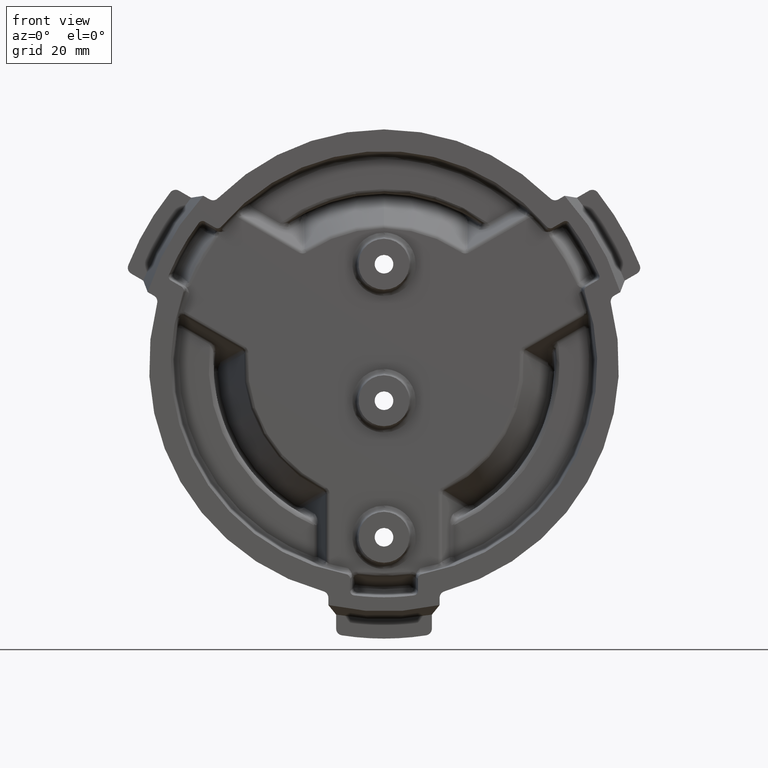
[diagram: clean part render]
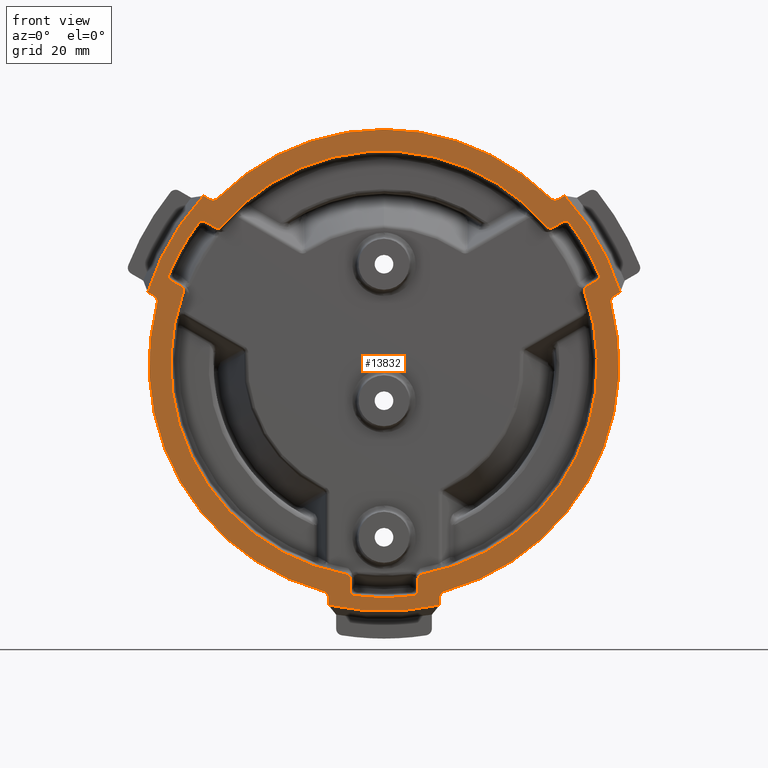
[diagram: same view with one face highlighted and labeled with its STEP entity id]
A machine part, front view. The second image highlights one B-rep face of the part: STEP entity #13832.
In plain terms, the highlighted planar face has unit normal (0, 1, 0).
Its self-contained STEP definition (entity closure, byte-faithful):
#163 = FACE_BOUND ( 'NONE', #37747, .T. ) ;
#164 = FACE_OUTER_BOUND ( 'NONE', #37662, .T. ) ;
#1125 = CIRCLE ( 'NONE', #6165, 3.226552581000000400 ) ;
#1142 = LINE ( 'NONE', #44319, #1175 ) ;
#1175 = VECTOR ( 'NONE', #44320, 39.37007874015748900 ) ;
#2332 = VERTEX_POINT ( 'NONE', #2371 ) ;
#2371 = CARTESIAN_POINT ( 'NONE',  ( 0.0000000000000000000, -0.1249999999999971700, -3.200226366000000300 ) ) ;
#2454 = CARTESIAN_POINT ( 'NONE',  ( 0.4121272542386955600, -0.1250000064752173900, -3.173578410472714500 ) ) ;
#2523 = VERTEX_POINT ( 'NONE', #2454 ) ;
#6165 = AXIS2_PLACEMENT_3D ( 'NONE', #44491, #44502, #44503 ) ;
#8155 = CARTESIAN_POINT ( 'NONE',  ( 2.461742267201034700, -0.1249999933031171600, 1.959806704178033200 ) ) ;
#8157 = CARTESIAN_POINT ( 'NONE',  ( 2.755364391895232400, -0.1250000000000000300, 0.9931031767505652500 ) ) ;
#8161 = CARTESIAN_POINT ( 'NONE',  ( 2.542335897791566000, -0.1249999916413009600, 1.943701875274545600 ) ) ;
#8163 = CARTESIAN_POINT ( 'NONE',  ( 2.954463150244362300, -0.1250000000000000000, 1.229876534419059200 ) ) ;
#8165 = CARTESIAN_POINT ( 'NONE',  ( 2.782807055019823000, -0.1250000051450829200, 1.068135259018096600 ) ) ;
#8167 = CARTESIAN_POINT ( 'NONE',  ( 2.928113524967871100, -0.1249999960992231300, 1.152027989796188900 ) ) ;
#8169 = CARTESIAN_POINT ( 'NONE',  ( 2.282811154036612100, -0.1250000000000000600, 2.280222531537182000 ) ) ;
#8189 = CARTESIAN_POINT ( 'NONE',  ( -2.755364392401665500, -0.1250000000000000000, 0.9931031751010724900 ) ) ;
#8191 = CARTESIAN_POINT ( 'NONE',  ( -0.5176296192909433100, -0.1250000054141501600, -2.882767147971071300 ) ) ;
#8193 = CARTESIAN_POINT ( 'NONE',  ( -0.4663712584720045000, -0.1250000043286184100, -2.944049231324467700 ) ) ;
#8197 = CARTESIAN_POINT ( 'NONE',  ( -0.4663712583855270100, -0.1250000019057981000, -3.111834691147914000 ) ) ;
#8201 = CARTESIAN_POINT ( 'NONE',  ( 0.5176296186187184800, -0.1250000000000000300, -2.882767148142288500 ) ) ;
#8203 = CARTESIAN_POINT ( 'NONE',  ( 0.4663712584720045600, -0.1250000043286174600, -2.944049231324466800 ) ) ;
#8204 = CARTESIAN_POINT ( 'NONE',  ( -0.4121272531557411100, -0.1250000000000003300, -3.173578409705864400 ) ) ;
#8206 = CARTESIAN_POINT ( 'NONE',  ( 0.4663712585769430000, -0.1250000051796116600, -3.111834691609375500 ) ) ;
#8208 = CARTESIAN_POINT ( 'NONE',  ( 2.316435796257492600, -0.1249999943931840700, 1.875913973850371000 ) ) ;
#8209 = CARTESIAN_POINT ( 'NONE',  ( 2.237734774380530000, -0.1250000000000000000, 1.889663972676290000 ) ) ;
#8211 = CARTESIAN_POINT ( 'NONE',  ( -2.237734773641281800, -0.1249999929956227100, 1.889663972821680000 ) ) ;
#8213 = CARTESIAN_POINT ( 'NONE',  ( -2.782807055019822100, -0.1250000051450803600, 1.068135259018096600 ) ) ;
#8215 = CARTESIAN_POINT ( 'NONE',  ( -2.316435796257688900, -0.1249999944031923300, 1.875913973851495400 ) ) ;
#8219 = CARTESIAN_POINT ( 'NONE',  ( -2.928113524952971500, -0.1249999952814217600, 1.152027989530487200 ) ) ;
#8220 = CARTESIAN_POINT ( 'NONE',  ( -2.954463148646905100, -0.1249999941039111200, 1.229876534865652600 ) ) ;
#8221 = CARTESIAN_POINT ( 'NONE',  ( -2.461742267130246900, -0.1249999976535352800, 1.959806704569898100 ) ) ;
#8223 = CARTESIAN_POINT ( 'NONE',  ( -2.542335896573467900, -0.1250000000000000600, 1.943701876249357000 ) ) ;
#8309 = CARTESIAN_POINT ( 'NONE',  ( 0.7640525821517287800, -0.1250000000087826400, -3.306304673701824000 ) ) ;
#8310 = CARTESIAN_POINT ( 'NONE',  ( -0.7640525821507303500, -0.1249999999973790300, -3.306304673703079000 ) ) ;
#8312 = CARTESIAN_POINT ( 'NONE',  ( -2.481317550004754800, -0.1249999999163534900, 2.314841281757461700 ) ) ;
#8314 = CARTESIAN_POINT ( 'NONE',  ( -0.7640525818443583100, -0.1250000000379302100, -3.207308371077314000 ) ) ;
#8320 = CARTESIAN_POINT ( 'NONE',  ( -0.8333250613298869300, -0.1249999999999999600, -3.117083716816022600 ) ) ;
#8322 = CARTESIAN_POINT ( 'NONE',  ( -3.159636815994432800, -0.1250000021403731600, 0.9419652403709535300 ) ) ;
#8324 = CARTESIAN_POINT ( 'NONE',  ( -3.116136215472427900, -0.1250000000000000300, 0.8368611859675059200 ) ) ;
#8326 = CARTESIAN_POINT ( 'NONE',  ( -3.245370130629242000, -0.1250000000051255700, 0.9914633925954888800 ) ) ;
#8327 = CARTESIAN_POINT ( 'NONE',  ( 0.8333250631386410800, -0.1250000000000000300, -3.117083716729909700 ) ) ;
#8329 = CARTESIAN_POINT ( 'NONE',  ( 0.7640525818443589800, -0.1250000000379317700, -3.207308371077314000 ) ) ;
#8330 = CARTESIAN_POINT ( 'NONE',  ( 3.116136215420051600, -0.1249999999999999600, 0.8368611855027453500 ) ) ;
#8332 = CARTESIAN_POINT ( 'NONE',  ( 3.159636815994433200, -0.1250000021403731600, 0.9419652403709535300 ) ) ;
#8334 = CARTESIAN_POINT ( 'NONE',  ( 3.245370130626443300, -0.1250000000568117200, 0.9914633925891717100 ) ) ;
#8335 = CARTESIAN_POINT ( 'NONE',  ( 2.395584236801082200, -0.1250000047131958600, 2.265343129035939800 ) ) ;
#8337 = CARTESIAN_POINT ( 'NONE',  ( 2.481317550009060300, -0.1249999999204373100, 2.314841281752322700 ) ) ;
#9656 = ORIENTED_EDGE ( 'NONE', *, *, #24667, .F. ) ;
#9678 = ORIENTED_EDGE ( 'NONE', *, *, #24653, .F. ) ;
#9679 = ORIENTED_EDGE ( 'NONE', *, *, #24638, .F. ) ;
#9680 = ORIENTED_EDGE ( 'NONE', *, *, #24641, .F. ) ;
#9681 = ORIENTED_EDGE ( 'NONE', *, *, #24430, .F. ) ;
#9682 = ORIENTED_EDGE ( 'NONE', *, *, #24644, .F. ) ;
#9683 = ORIENTED_EDGE ( 'NONE', *, *, #24636, .F. ) ;
#9819 = ORIENTED_EDGE ( 'NONE', *, *, #24637, .F. ) ;
#9859 = ORIENTED_EDGE ( 'NONE', *, *, #24648, .F. ) ;
#9922 = ORIENTED_EDGE ( 'NONE', *, *, #24682, .F. ) ;
#9953 = ORIENTED_EDGE ( 'NONE', *, *, #24664, .F. ) ;
#10129 = ORIENTED_EDGE ( 'NONE', *, *, #24409, .F. ) ;
#10130 = ORIENTED_EDGE ( 'NONE', *, *, #24821, .F. ) ;
#10131 = ORIENTED_EDGE ( 'NONE', *, *, #24402, .F. ) ;
#10132 = ORIENTED_EDGE ( 'NONE', *, *, #24405, .F. ) ;
#10133 = ORIENTED_EDGE ( 'NONE', *, *, #24404, .F. ) ;
#10134 = ORIENTED_EDGE ( 'NONE', *, *, #24401, .F. ) ;
#10135 = ORIENTED_EDGE ( 'NONE', *, *, #29885, .F. ) ;
#10136 = ORIENTED_EDGE ( 'NONE', *, *, #24411, .F. ) ;
#10137 = ORIENTED_EDGE ( 'NONE', *, *, #24679, .F. ) ;
#10139 = ORIENTED_EDGE ( 'NONE', *, *, #24683, .F. ) ;
#10140 = ORIENTED_EDGE ( 'NONE', *, *, #24659, .F. ) ;
#10141 = ORIENTED_EDGE ( 'NONE', *, *, #24668, .F. ) ;
#10142 = ORIENTED_EDGE ( 'NONE', *, *, #24684, .F. ) ;
#10143 = ORIENTED_EDGE ( 'NONE', *, *, #24680, .F. ) ;
#10144 = ORIENTED_EDGE ( 'NONE', *, *, #24674, .F. ) ;
#10145 = ORIENTED_EDGE ( 'NONE', *, *, #24675, .F. ) ;
#10146 = ORIENTED_EDGE ( 'NONE', *, *, #24471, .F. ) ;
#10163 = ORIENTED_EDGE ( 'NONE', *, *, #24669, .F. ) ;
#10167 = ORIENTED_EDGE ( 'NONE', *, *, #24651, .F. ) ;
#10170 = ORIENTED_EDGE ( 'NONE', *, *, #24657, .F. ) ;
#10171 = ORIENTED_EDGE ( 'NONE', *, *, #24442, .F. ) ;
#10173 = ORIENTED_EDGE ( 'NONE', *, *, #24655, .F. ) ;
#10182 = ORIENTED_EDGE ( 'NONE', *, *, #24418, .F. ) ;
#10257 = ORIENTED_EDGE ( 'NONE', *, *, #24685, .F. ) ;
#10295 = ORIENTED_EDGE ( 'NONE', *, *, #24416, .F. ) ;
#10300 = ORIENTED_EDGE ( 'NONE', *, *, #13182, .F. ) ;
#10301 = ORIENTED_EDGE ( 'NONE', *, *, #13191, .T. ) ;
#10303 = ORIENTED_EDGE ( 'NONE', *, *, #13193, .T. ) ;
#10304 = ORIENTED_EDGE ( 'NONE', *, *, #24419, .F. ) ;
#10305 = ORIENTED_EDGE ( 'NONE', *, *, #24631, .F. ) ;
#10331 = ORIENTED_EDGE ( 'NONE', *, *, #24412, .F. ) ;
#10440 = ORIENTED_EDGE ( 'NONE', *, *, #29887, .F. ) ;
#12182 = CIRCLE ( 'NONE', #30344, 2.928871259000000600 ) ;
#12184 = LINE ( 'NONE', #14504, #13056 ) ;
#12189 = VECTOR ( 'NONE', #14292, 39.37007874015748100 ) ;
#12195 = LINE ( 'NONE', #14283, #12189 ) ;
#12430 = CIRCLE ( 'NONE', #30345, 3.200226366000000300 ) ;
#12603 = CIRCLE ( 'NONE', #30353, 3.226552581000000400 ) ;
#12607 = CIRCLE ( 'NONE', #30351, 3.226552581000000400 ) ;
#12856 = LINE ( 'NONE', #18401, #12954 ) ;
#12857 = VECTOR ( 'NONE', #18338, 39.37007874015748100 ) ;
#12858 = VECTOR ( 'NONE', #18282, 39.37007874015748900 ) ;
#12860 = LINE ( 'NONE', #18332, #12956 ) ;
#12872 = CIRCLE ( 'NONE', #41965, 2.928871259000000600 ) ;
#12873 = VECTOR ( 'NONE', #18610, 39.37007874015748100 ) ;
#12874 = CIRCLE ( 'NONE', #41980, 3.200226366000000300 ) ;
#12910 = VECTOR ( 'NONE', #18598, 39.37007874015748100 ) ;
#12911 = CIRCLE ( 'NONE', #41967, 3.393438808000000400 ) ;
#12920 = LINE ( 'NONE', #18609, #12873 ) ;
#12922 = LINE ( 'NONE', #18597, #12910 ) ;
#12923 = CIRCLE ( 'NONE', #41971, 3.393438808000000400 ) ;
#12924 = LINE ( 'NONE', #18555, #12925 ) ;
#12925 = VECTOR ( 'NONE', #18556, 39.37007874015748100 ) ;
#12939 = CIRCLE ( 'NONE', #41778, 3.200226366000000300 ) ;
#12954 = VECTOR ( 'NONE', #18402, 39.37007874015748100 ) ;
#12956 = VECTOR ( 'NONE', #18333, 39.37007874015748100 ) ;
#12957 = CIRCLE ( 'NONE', #41945, 3.393438808000000400 ) ;
#12958 = LINE ( 'NONE', #18311, #12857 ) ;
#12964 = LINE ( 'NONE', #18469, #12967 ) ;
#12966 = VECTOR ( 'NONE', #18428, 39.37007874015748100 ) ;
#12967 = VECTOR ( 'NONE', #18470, 39.37007874015748100 ) ;
#12968 = LINE ( 'NONE', #18427, #12966 ) ;
#13034 = CIRCLE ( 'NONE', #30343, 2.928871259000000600 ) ;
#13052 = LINE ( 'NONE', #18281, #12858 ) ;
#13056 = VECTOR ( 'NONE', #14513, 39.37007874015748100 ) ;
#13182 = EDGE_CURVE ( 'NONE', #42935, #32658, #1142, .T. ) ;
#13191 = EDGE_CURVE ( 'NONE', #32696, #32658, #17854, .T. ) ;
#13193 = EDGE_CURVE ( 'NONE', #42855, #32696, #1125, .T. ) ;
#13832 = ADVANCED_FACE ( 'NONE', ( #163, #164 ), #30643, .F. ) ;
#14250 = CARTESIAN_POINT ( 'NONE',  ( -0.5176296192909433100, -0.1250000054141501600, -2.882767147971071300 ) ) ;
#14252 = CARTESIAN_POINT ( 'NONE',  ( -0.4663712583855270100, -0.1250000019057981000, -3.111834691147914000 ) ) ;
#14259 = CARTESIAN_POINT ( 'NONE',  ( 0.0000000000000000000, -0.1250000000000000300, 0.0000000000000000000 ) ) ;
#14267 = CARTESIAN_POINT ( 'NONE',  ( -0.4663712590537564300, -0.1249999999999999000, -3.119383442978664400 ) ) ;
#14268 = CARTESIAN_POINT ( 'NONE',  ( -0.4650306082627543900, -0.1250000000000001400, -3.126757102266714700 ) ) ;
#14270 = CARTESIAN_POINT ( 'NONE',  ( -0.4597372353189709800, -0.1250000000000001100, -3.140839098378216800 ) ) ;
#14271 = CARTESIAN_POINT ( 'NONE',  ( -0.4558585281745724000, -0.1250000000000001400, -3.147303423326364100 ) ) ;
#14273 = CARTESIAN_POINT ( 'NONE',  ( -0.4410125278306416500, -0.1250000000000001100, -3.164207275623771600 ) ) ;
#14275 = CARTESIAN_POINT ( 'NONE',  ( -0.4270992916835518700, -0.1250000000000006900, -3.171634110963202200 ) ) ;
#14276 = CARTESIAN_POINT ( 'NONE',  ( -0.4121272531557411100, -0.1250000000000003300, -3.173578409705864400 ) ) ;
#14280 = DIRECTION ( 'NONE',  ( 0.0000000000000000000, -1.000000000000000000, 0.0000000000000000000 ) ) ;
#14282 = DIRECTION ( 'NONE',  ( 0.0000000000000000000, 0.0000000000000000000, -1.000000000000000000 ) ) ;
#14283 = CARTESIAN_POINT ( 'NONE',  ( -0.4663712569687337200, -0.1250000000000000300, -0.08344311350000022100 ) ) ;
#14292 = DIRECTION ( 'NONE',  ( -0.0000000000000000000, -0.0000000000000000000, -1.000000000000000000 ) ) ;
#14296 = CARTESIAN_POINT ( 'NONE',  ( -0.5104480900988827000, -0.1250000000000000300, -2.884056663338792100 ) ) ;
#14297 = CARTESIAN_POINT ( 'NONE',  ( -0.5036705978414051100, -0.1250000000000000800, -2.886540159154147300 ) ) ;
#14299 = CARTESIAN_POINT ( 'NONE',  ( -0.4910661382134574000, -0.1250000000000000300, -2.893844508355128300 ) ) ;
#14301 = CARTESIAN_POINT ( 'NONE',  ( -0.4855270796498399300, -0.1250000000000000300, -2.898507855972621200 ) ) ;
#14302 = CARTESIAN_POINT ( 'NONE',  ( -0.4761947423681062200, -0.1250000000000000300, -2.909663788331493100 ) ) ;
#14304 = CARTESIAN_POINT ( 'NONE',  ( -0.4725747648635846300, -0.1250000000000000300, -2.915961915261876800 ) ) ;
#14305 = CARTESIAN_POINT ( 'NONE',  ( -0.4676275201504664400, -0.1250000000000000300, -2.929614006464272200 ) ) ;
#14307 = CARTESIAN_POINT ( 'NONE',  ( -0.4663712589735867200, -0.1250000000000000300, -2.936752787074163000 ) ) ;
#14309 = CARTESIAN_POINT ( 'NONE',  ( -0.4663712584720045000, -0.1250000043286184100, -2.944049231324467700 ) ) ;
#14491 = CARTESIAN_POINT ( 'NONE',  ( 0.0000000000000000000, -0.1249999999999971700, 0.0000000000000000000 ) ) ;
#14498 = DIRECTION ( 'NONE',  ( 0.0000000000000000000, -1.000000000000000000, 0.0000000000000000000 ) ) ;
#14499 = DIRECTION ( 'NONE',  ( 0.0000000000000000000, 0.0000000000000000000, -1.000000000000000000 ) ) ;
#14500 = CARTESIAN_POINT ( 'NONE',  ( 0.4121272542386955600, -0.1250000064752173900, -3.173578410472714500 ) ) ;
#14504 = CARTESIAN_POINT ( 'NONE',  ( 0.4663712569687342200, -0.1250000000000000300, -0.08344311350000022100 ) ) ;
#14505 = CARTESIAN_POINT ( 'NONE',  ( 0.4196131482228909200, -0.1249999999999999600, -3.172606276186806800 ) ) ;
#14506 = CARTESIAN_POINT ( 'NONE',  ( 0.4267527575462400400, -0.1250000000000000600, -3.170327203427255400 ) ) ;
#14507 = CARTESIAN_POINT ( 'NONE',  ( 0.4400358099190058200, -0.1250000000000000800, -3.163264418814618000 ) ) ;
#14508 = CARTESIAN_POINT ( 'NONE',  ( 0.4459468047642536900, -0.1250000000000000600, -3.158585529492832700 ) ) ;
#14509 = CARTESIAN_POINT ( 'NONE',  ( 0.4607980232616148400, -0.1250000000000000800, -3.141686261928754700 ) ) ;
#14510 = CARTESIAN_POINT ( 'NONE',  ( 0.4663712588125947800, -0.1250000000000005600, -3.126932446831253400 ) ) ;
#14511 = CARTESIAN_POINT ( 'NONE',  ( 0.4663712585769430000, -0.1250000051796116600, -3.111834691609375500 ) ) ;
#14513 = DIRECTION ( 'NONE',  ( 0.0000000000000000000, 0.0000000000000000000, 1.000000000000000000 ) ) ;
#14519 = CARTESIAN_POINT ( 'NONE',  ( 0.4663712584720045600, -0.1250000043286174600, -2.944049231324466800 ) ) ;
#14523 = CARTESIAN_POINT ( 'NONE',  ( 0.0000000000000000000, -0.1250000000000000300, 0.0000000000000000000 ) ) ;
#14528 = CARTESIAN_POINT ( 'NONE',  ( 0.4663712589735849500, -0.1250000000000000600, -2.936752847862015500 ) ) ;
#14529 = CARTESIAN_POINT ( 'NONE',  ( 0.4676178527177837800, -0.1250000000000000300, -2.929643125279608500 ) ) ;
#14530 = CARTESIAN_POINT ( 'NONE',  ( 0.4725795930231840900, -0.1249999999999999600, -2.915946152965748000 ) ) ;
#14531 = CARTESIAN_POINT ( 'NONE',  ( 0.4761905964873309200, -0.1250000000000000300, -2.909670116518290300 ) ) ;
#14532 = CARTESIAN_POINT ( 'NONE',  ( 0.4855215837612396100, -0.1250000000000000300, -2.898513055032222200 ) ) ;
#14533 = CARTESIAN_POINT ( 'NONE',  ( 0.4910807987243703300, -0.1250000000000000300, -2.893836970742232200 ) ) ;
#14534 = CARTESIAN_POINT ( 'NONE',  ( 0.5036436456106496700, -0.1250000000000000300, -2.886554820818987700 ) ) ;
#14535 = CARTESIAN_POINT ( 'NONE',  ( 0.5104480301940028700, -0.1250000000000000300, -2.884056674095293500 ) ) ;
#14536 = CARTESIAN_POINT ( 'NONE',  ( 0.5176296186187184800, -0.1250000000000000300, -2.882767148142288500 ) ) ;
#14540 = CARTESIAN_POINT ( 'NONE',  ( 2.282811154036612100, -0.1250000000000000600, 2.280222531537182000 ) ) ;
#14541 = DIRECTION ( 'NONE',  ( 0.0000000000000000000, -1.000000000000000000, 0.0000000000000000000 ) ) ;
#14542 = DIRECTION ( 'NONE',  ( 0.0000000000000000000, 0.0000000000000000000, -1.000000000000000000 ) ) ;
#14544 = CARTESIAN_POINT ( 'NONE',  ( 2.290080201304853300, -0.1250000000000000300, 2.272945232172134800 ) ) ;
#14545 = CARTESIAN_POINT ( 'NONE',  ( 2.298316826557904600, -0.1249999999999999400, 2.267030138587632600 ) ) ;
#14546 = CARTESIAN_POINT ( 'NONE',  ( 2.316724875558880700, -0.1249999999999998800, 2.257923858431366300 ) ) ;
#14547 = CARTESIAN_POINT ( 'NONE',  ( 2.326459231186101700, -0.1250000000000000300, 2.254961434680871500 ) ) ;
#14548 = CARTESIAN_POINT ( 'NONE',  ( 2.346785908415394100, -0.1249999999999999900, 2.252269356034607700 ) ) ;
#14549 = CARTESIAN_POINT ( 'NONE',  ( 2.356989511428657200, -0.1249999999999999200, 2.252601937562687800 ) ) ;
#14550 = CARTESIAN_POINT ( 'NONE',  ( 2.377073019745227000, -0.1249999999999999000, 2.256591207498103800 ) ) ;
#14551 = CARTESIAN_POINT ( 'NONE',  ( 2.386676365425724400, -0.1250000000000000600, 2.260200168049804100 ) ) ;
#14552 = CARTESIAN_POINT ( 'NONE',  ( 2.395584236801082200, -0.1250000047131958600, 2.265343129035939800 ) ) ;
#14861 = CARTESIAN_POINT ( 'NONE',  ( 0.0000000000000000000, -0.1250000000000000300, 0.0000000000000000000 ) ) ;
#14920 = DIRECTION ( 'NONE',  ( 0.0000000000000000000, 1.000000000000000000, 0.0000000000000000000 ) ) ;
#14921 = DIRECTION ( 'NONE',  ( 8.881784197001252300E-016, 0.0000000000000000000, -1.000000000000000000 ) ) ;
#15008 = CARTESIAN_POINT ( 'NONE',  ( 0.0000000000000000000, -0.1250000000000000300, 0.0000000000000000000 ) ) ;
#15189 = DIRECTION ( 'NONE',  ( 0.0000000000000000000, 1.000000000000000000, 0.0000000000000000000 ) ) ;
#15190 = DIRECTION ( 'NONE',  ( 0.0000000000000000000, 0.0000000000000000000, -1.000000000000000000 ) ) ;
#15596 = CARTESIAN_POINT ( 'NONE',  ( 0.0000000000000000000, -0.1249999999999971700, 0.0000000000000000000 ) ) ;
#15653 = DIRECTION ( 'NONE',  ( 0.0000000000000000000, -1.000000000000000000, 0.0000000000000000000 ) ) ;
#15654 = DIRECTION ( 'NONE',  ( 0.0000000000000000000, 0.0000000000000000000, -1.000000000000000000 ) ) ;
#17788 = B_SPLINE_CURVE_WITH_KNOTS ( 'NONE', 3,
 ( #14252, #14267, #14268, #14270, #14271, #14273, #14275, #14276 ),
 .UNSPECIFIED., .F., .F.,
 ( 4, 2, 2, 4 ),
 ( 1.398578778534940500E-017, 0.0005670895140099493000, 0.001134179028019884500, 0.002268358056039786400 ),
 .UNSPECIFIED. ) ;
#17791 = B_SPLINE_CURVE_WITH_KNOTS ( 'NONE', 3,
 ( #14500, #14505, #14506, #14507, #14508, #14509, #14510, #14511 ),
 .UNSPECIFIED., .F., .F.,
 ( 4, 2, 2, 4 ),
 ( 0.0000000000000000000, 0.0005670895067297049700, 0.001134179013459409900, 0.002268358026918819900 ),
 .UNSPECIFIED. ) ;
#17793 = B_SPLINE_CURVE_WITH_KNOTS ( 'NONE', 3,
 ( #14250, #14296, #14297, #14299, #14301, #14302, #14304, #14305, #14307, #14309 ),
 .UNSPECIFIED., .F., .F.,
 ( 4, 2, 2, 2, 4 ),
 ( 5.204170427930421300E-018, 0.0005481279119270293700, 0.001096255823854053500, 0.001644383735781077700, 0.002192511647708101800 ),
 .UNSPECIFIED. ) ;
#17796 = B_SPLINE_CURVE_WITH_KNOTS ( 'NONE', 3,
 ( #14540, #14544, #14545, #14546, #14547, #14548, #14549, #14550, #14551, #14552 ),
 .UNSPECIFIED., .F., .F.,
 ( 4, 2, 2, 2, 4 ),
 ( 0.0000000000000000000, 0.0007726978866790727500, 0.001545395773358145500, 0.002318093660037218300, 0.003090791546716291000 ),
 .UNSPECIFIED. ) ;
#17808 = B_SPLINE_CURVE_WITH_KNOTS ( 'NONE', 3,
 ( #14519, #14528, #14529, #14530, #14531, #14532, #14533, #14534, #14535, #14536 ),
 .UNSPECIFIED., .F., .F.,
 ( 4, 2, 2, 2, 4 ),
 ( 0.0000000000000000000, 0.0005481279076406265400, 0.001096255815281253100, 0.001644383722921879600, 0.002192511630562506100 ),
 .UNSPECIFIED. ) ;
#17854 = B_SPLINE_CURVE_WITH_KNOTS ( 'NONE', 3,
 ( #44356, #44482, #44483, #44484, #44485, #44486, #44487, #44488, #44489, #44490 ),
 .UNSPECIFIED., .F., .F.,
 ( 4, 2, 2, 2, 4 ),
 ( 0.0000000000000000000, 0.0007726978882024948800, 0.001545395776404989800, 0.002318093664607484700, 0.003090791552809979500 ),
 .UNSPECIFIED. ) ;
#18281 = CARTESIAN_POINT ( 'NONE',  ( 2.337971344006961200, -0.1249999998408746200, 2.232080310987943700 ) ) ;
#18282 = DIRECTION ( 'NONE',  ( 0.8660254034136001300, 0.0000000000000000000, 0.5000000006423110900 ) ) ;
#18311 = CARTESIAN_POINT ( 'NONE',  ( 3.528276152999549000, -0.1249999999896982800, 1.154799260000780600 ) ) ;
#18331 = CARTESIAN_POINT ( 'NONE',  ( 0.0000000000000000000, -0.1250000000000000300, 0.0000000000000000000 ) ) ;
#18332 = CARTESIAN_POINT ( 'NONE',  ( 0.7640525833019207200, -0.1250000000000000300, -0.08344311350000022100 ) ) ;
#18333 = DIRECTION ( 'NONE',  ( -0.0000000000000000000, -0.0000000000000000000, -1.000000000000000000 ) ) ;
#18335 = DIRECTION ( 'NONE',  ( 0.0000000000000000000, 1.000000000000000000, -0.0000000000000000000 ) ) ;
#18336 = DIRECTION ( 'NONE',  ( 0.0000000000000000000, 0.0000000000000000000, 1.000000000000000000 ) ) ;
#18338 = DIRECTION ( 'NONE',  ( -0.8660254048012908700, 0.0000000000000000000, -0.4999999982387602900 ) ) ;
#18339 = CARTESIAN_POINT ( 'NONE',  ( 3.159636815994433200, -0.1250000021403731600, 0.9419652403709535300 ) ) ;
#18349 = CARTESIAN_POINT ( 'NONE',  ( 3.150729033153587500, -0.1249999999999999900, 0.9368223295284634500 ) ) ;
#18350 = CARTESIAN_POINT ( 'NONE',  ( 3.142887342814769900, -0.1249999999999999000, 0.9303928490580227800 ) ) ;
#18351 = CARTESIAN_POINT ( 'NONE',  ( 3.129335750662939100, -0.1249999999999998500, 0.9149612273679734700 ) ) ;
#18352 = CARTESIAN_POINT ( 'NONE',  ( 3.123959732155337000, -0.1249999999999999000, 0.9063222424620857000 ) ) ;
#18353 = CARTESIAN_POINT ( 'NONE',  ( 3.116109196321117800, -0.1249999999999999400, 0.8873804850620902200 ) ) ;
#18354 = CARTESIAN_POINT ( 'NONE',  ( 3.113795198690485900, -0.1250000000000000300, 0.8774371687000216400 ) ) ;
#18355 = CARTESIAN_POINT ( 'NONE',  ( 3.112462134356034100, -0.1250000000000000300, 0.8570047311851835000 ) ) ;
#18356 = CARTESIAN_POINT ( 'NONE',  ( 3.113468386437134000, -0.1249999999999999600, 0.8467951127384436600 ) ) ;
#18357 = CARTESIAN_POINT ( 'NONE',  ( 3.116136215420051600, -0.1249999999999999600, 0.8368611855027453500 ) ) ;
#18360 = CARTESIAN_POINT ( 'NONE',  ( 0.8333250631386410800, -0.1250000000000000300, -3.117083716729909700 ) ) ;
#18364 = CARTESIAN_POINT ( 'NONE',  ( 0.8233882135051952000, -0.1250000000000000600, -3.119740245790004100 ) ) ;
#18365 = CARTESIAN_POINT ( 'NONE',  ( 0.8141472790147066300, -0.1250000000000000600, -3.123915825703206900 ) ) ;
#18366 = CARTESIAN_POINT ( 'NONE',  ( 0.7970569841950219100, -0.1250000000000000300, -3.135304523943784900 ) ) ;
#18367 = CARTESIAN_POINT ( 'NONE',  ( 0.7896242720311265100, -0.1250000000000000300, -3.142253511504918200 ) ) ;
#18368 = CARTESIAN_POINT ( 'NONE',  ( 0.7771295247270020300, -0.1249999999999999900, -3.158510891436532300 ) ) ;
#18369 = CARTESIAN_POINT ( 'NONE',  ( 0.7723157472091759500, -0.1250000000000000600, -3.167513761842387000 ) ) ;
#18370 = CARTESIAN_POINT ( 'NONE',  ( 0.7657288020767915000, -0.1250000000000000800, -3.186901225656069600 ) ) ;
#18371 = CARTESIAN_POINT ( 'NONE',  ( 0.7640525807551579200, -0.1250000000000000300, -3.197022447463032900 ) ) ;
#18372 = CARTESIAN_POINT ( 'NONE',  ( 0.7640525818443589800, -0.1250000000379317700, -3.207308371077314000 ) ) ;
#18401 = CARTESIAN_POINT ( 'NONE',  ( -3.102023923999526600, -0.1249999999891817800, 0.9087024220008198500 ) ) ;
#18402 = DIRECTION ( 'NONE',  ( -0.8660254048012908700, 0.0000000000000000000, 0.4999999982387602900 ) ) ;
#18427 = CARTESIAN_POINT ( 'NONE',  ( -0.7640525833019193900, -0.1250000000000000000, -0.08344311349999994400 ) ) ;
#18428 = DIRECTION ( 'NONE',  ( 0.0000000000000000000, 0.0000000000000000000, 1.000000000000000000 ) ) ;
#18429 = CARTESIAN_POINT ( 'NONE',  ( 0.0000000000000000000, -0.1250000000000000300, 0.0000000000000000000 ) ) ;
#18434 = DIRECTION ( 'NONE',  ( 0.0000000000000000000, 1.000000000000000000, -0.0000000000000000000 ) ) ;
#18435 = DIRECTION ( 'NONE',  ( 0.0000000000000000000, 0.0000000000000000000, 1.000000000000000000 ) ) ;
#18436 = CARTESIAN_POINT ( 'NONE',  ( -0.7640525818443583100, -0.1250000000379302100, -3.207308371077314000 ) ) ;
#18442 = CARTESIAN_POINT ( 'NONE',  ( -3.116136215472427900, -0.1250000000000000300, 0.8368611859675059200 ) ) ;
#18443 = CARTESIAN_POINT ( 'NONE',  ( -0.7640525807551585800, -0.1249999999999999300, -3.197022549322680300 ) ) ;
#18444 = CARTESIAN_POINT ( 'NONE',  ( -0.7656998286989720200, -0.1249999999999999600, -3.187016705879414800 ) ) ;
#18445 = CARTESIAN_POINT ( 'NONE',  ( -0.7722882086886757600, -0.1249999999999999200, -3.167564871616597600 ) ) ;
#18446 = CARTESIAN_POINT ( 'NONE',  ( -0.7770817797090552300, -0.1249999999999999300, -3.158589610358983000 ) ) ;
#18447 = CARTESIAN_POINT ( 'NONE',  ( -0.7895605547438459000, -0.1249999999999999400, -3.142319967814788000 ) ) ;
#18448 = CARTESIAN_POINT ( 'NONE',  ( -0.7970147205053398400, -0.1249999999999999200, -3.135344328694657600 ) ) ;
#18449 = CARTESIAN_POINT ( 'NONE',  ( -0.8140431983589677700, -0.1249999999999999200, -3.123973642059569400 ) ) ;
#18450 = CARTESIAN_POINT ( 'NONE',  ( -0.8233881143129018200, -0.1249999999999999600, -3.119740272308158000 ) ) ;
#18451 = CARTESIAN_POINT ( 'NONE',  ( -0.8333250613298869300, -0.1249999999999999600, -3.117083716816022600 ) ) ;
#18455 = CARTESIAN_POINT ( 'NONE',  ( -3.113468412797040200, -0.1249999999999999300, 0.8467950146826784800 ) ) ;
#18456 = CARTESIAN_POINT ( 'NONE',  ( -3.112464104193751500, -0.1249999999999999900, 0.8568856882379295400 ) ) ;
#18457 = CARTESIAN_POINT ( 'NONE',  ( -3.113781858864714800, -0.1249999999999999900, 0.8773806662250759300 ) ) ;
#18458 = CARTESIAN_POINT ( 'NONE',  ( -3.116083502477422900, -0.1250000000000000300, 0.8872920772958202700 ) ) ;
#18459 = CARTESIAN_POINT ( 'NONE',  ( -3.123915432505751000, -0.1250000000000000300, 0.9062415353355506300 ) ) ;
#18460 = CARTESIAN_POINT ( 'NONE',  ( -3.129305257979391200, -0.1249999999999998600, 0.9149118239807695300 ) ) ;
#18461 = CARTESIAN_POINT ( 'NONE',  ( -3.142801820929067800, -0.1249999999999998500, 0.9303100174445213500 ) ) ;
#18462 = CARTESIAN_POINT ( 'NONE',  ( -3.150728945092231100, -0.1249999999999999600, 0.9368222786862141500 ) ) ;
#18463 = CARTESIAN_POINT ( 'NONE',  ( -3.159636815994432800, -0.1250000021403731600, 0.9419652403709535300 ) ) ;
#18469 = CARTESIAN_POINT ( 'NONE',  ( 2.744083158995009400, -0.1249999998859057400, 1.045778007008644600 ) ) ;
#18470 = DIRECTION ( 'NONE',  ( 0.8660254043365773800, 0.0000000000000000000, 0.4999999990436676000 ) ) ;
#18478 = CARTESIAN_POINT ( 'NONE',  ( 0.0000000000000000000, -0.1250000000000000300, 0.0000000000000000000 ) ) ;
#18503 = DIRECTION ( 'NONE',  ( 0.0000000000000000000, 1.000000000000000000, -0.0000000000000000000 ) ) ;
#18504 = DIRECTION ( 'NONE',  ( 0.0000000000000000000, 0.0000000000000000000, 1.000000000000000000 ) ) ;
#18506 = CARTESIAN_POINT ( 'NONE',  ( 2.755364391895232400, -0.1250000000000000300, 0.9931031767505652500 ) ) ;
#18510 = CARTESIAN_POINT ( 'NONE',  ( 2.928113524967871100, -0.1249999960992231300, 1.152027989796188900 ) ) ;
#18514 = CARTESIAN_POINT ( 'NONE',  ( 2.542335897791566000, -0.1249999916413009600, 1.943701875274545600 ) ) ;
#18515 = CARTESIAN_POINT ( 'NONE',  ( 2.752890380410015800, -0.1249999999999999300, 0.9999673209720902900 ) ) ;
#18516 = CARTESIAN_POINT ( 'NONE',  ( 2.751652405309795500, -0.1250000000000000600, 1.007078549444603500 ) ) ;
#18517 = CARTESIAN_POINT ( 'NONE',  ( 2.751675928220280300, -0.1250000000000000300, 1.021646506022449800 ) ) ;
#18518 = CARTESIAN_POINT ( 'NONE',  ( 2.752944976751209500, -0.1250000000000000300, 1.028775145095076800 ) ) ;
#18519 = CARTESIAN_POINT ( 'NONE',  ( 2.757940129435124000, -0.1250000000000000300, 1.042435151973453400 ) ) ;
#18520 = CARTESIAN_POINT ( 'NONE',  ( 2.761584478785028600, -0.1250000000000000300, 1.048719207656197300 ) ) ;
#18521 = CARTESIAN_POINT ( 'NONE',  ( 2.770933914523411500, -0.1250000000000000300, 1.059829692289359700 ) ) ;
#18522 = CARTESIAN_POINT ( 'NONE',  ( 2.776488149447813700, -0.1250000000000000000, 1.064487036269740100 ) ) ;
#18523 = CARTESIAN_POINT ( 'NONE',  ( 2.782807055019823000, -0.1250000051450829200, 1.068135259018096600 ) ) ;
#18526 = CARTESIAN_POINT ( 'NONE',  ( 2.934650936366834700, -0.1250000000000000300, 1.155802364661170800 ) ) ;
#18527 = CARTESIAN_POINT ( 'NONE',  ( 2.940366387129931300, -0.1250000000000000600, 1.160650232014941900 ) ) ;
#18528 = CARTESIAN_POINT ( 'NONE',  ( 2.949915066772289800, -0.1250000000000000300, 1.172275425545157500 ) ) ;
#18529 = CARTESIAN_POINT ( 'NONE',  ( 2.953573982694748700, -0.1250000000000000000, 1.178866646986261000 ) ) ;
#18530 = CARTESIAN_POINT ( 'NONE',  ( 2.960790147582373200, -0.1250000000000000300, 1.200175586491867300 ) ) ;
#18531 = CARTESIAN_POINT ( 'NONE',  ( 2.960265357011560000, -0.1250000000000005000, 1.215938220465577500 ) ) ;
#18532 = CARTESIAN_POINT ( 'NONE',  ( 2.954463150244362300, -0.1250000000000000000, 1.229876534419059200 ) ) ;
#18534 = CARTESIAN_POINT ( 'NONE',  ( 2.537751058875250500, -0.1249999999999999200, 1.949698783375462400 ) ) ;
#18535 = CARTESIAN_POINT ( 'NONE',  ( 2.532207519416619100, -0.1249999999999999000, 1.954742330210104400 ) ) ;
#18536 = CARTESIAN_POINT ( 'NONE',  ( 2.519449442314320100, -0.1249999999999999200, 1.962714399009868100 ) ) ;
#18537 = CARTESIAN_POINT ( 'NONE',  ( 2.512441907931653300, -0.1250000000000001100, 1.965494026203485000 ) ) ;
#18538 = CARTESIAN_POINT ( 'NONE',  ( 2.490381103466245100, -0.1250000000000000300, 1.969905925514587700 ) ) ;
#18539 = CARTESIAN_POINT ( 'NONE',  ( 2.474817306815479500, -0.1250000000000005600, 1.967355582014117800 ) ) ;
#18540 = CARTESIAN_POINT ( 'NONE',  ( 2.461742267201034700, -0.1249999933031171600, 1.959806704178033200 ) ) ;
#18555 = CARTESIAN_POINT ( 'NONE',  ( 2.462839862996994100, -0.1250000000687117000, 1.960440401005206300 ) ) ;
#18556 = DIRECTION ( 'NONE',  ( -0.8660254043365768200, 0.0000000000000000000, -0.4999999990436687100 ) ) ;
#18557 = CARTESIAN_POINT ( 'NONE',  ( 0.0000000000000000000, -0.1250000000000000300, 0.0000000000000000000 ) ) ;
#18559 = DIRECTION ( 'NONE',  ( 0.0000000000000000000, -1.000000000000000000, 0.0000000000000000000 ) ) ;
#18560 = DIRECTION ( 'NONE',  ( 0.0000000000000000000, 0.0000000000000000000, -1.000000000000000000 ) ) ;
#18565 = CARTESIAN_POINT ( 'NONE',  ( -2.461742267130246900, -0.1249999976535352800, 1.959806704569898100 ) ) ;
#18569 = CARTESIAN_POINT ( 'NONE',  ( 2.316435796257492600, -0.1249999943931840700, 1.875913973850371000 ) ) ;
#18574 = CARTESIAN_POINT ( 'NONE',  ( -2.468279677920950400, -0.1249999999999999000, 1.963581080197277100 ) ) ;
#18575 = CARTESIAN_POINT ( 'NONE',  ( -2.475335779468355900, -0.1249999999999998500, 1.966106871920026500 ) ) ;
#18576 = CARTESIAN_POINT ( 'NONE',  ( -2.490177831967648200, -0.1249999999999997800, 1.968563674101663000 ) ) ;
#18577 = CARTESIAN_POINT ( 'NONE',  ( -2.497715454962931200, -0.1250000000000001700, 1.968436777479199300 ) ) ;
#18578 = CARTESIAN_POINT ( 'NONE',  ( -2.519777619957776200, -0.1250000000000001700, 1.964031689870416000 ) ) ;
#18579 = CARTESIAN_POINT ( 'NONE',  ( -2.533166066099511200, -0.1250000000000006400, 1.955695891305093700 ) ) ;
#18580 = CARTESIAN_POINT ( 'NONE',  ( -2.542335896573467900, -0.1250000000000000600, 1.943701876249357000 ) ) ;
#18581 = CARTESIAN_POINT ( 'NONE',  ( 0.0000000000000000000, -0.1250000000000000300, 0.0000000000000000000 ) ) ;
#18582 = CARTESIAN_POINT ( 'NONE',  ( 2.310116942747656700, -0.1249999999999999600, 1.872265782049074500 ) ) ;
#18583 = CARTESIAN_POINT ( 'NONE',  ( 2.303336445493999300, -0.1249999999999999900, 1.869790502340173300 ) ) ;
#18584 = CARTESIAN_POINT ( 'NONE',  ( 2.288993649195817200, -0.1249999999999999400, 1.867239008973696500 ) ) ;
#18585 = CARTESIAN_POINT ( 'NONE',  ( 2.281752940365663600, -0.1250000000000000300, 1.867228211332760300 ) ) ;
#18586 = CARTESIAN_POINT ( 'NONE',  ( 2.267425147770151900, -0.1249999999999999900, 1.869730552351848400 ) ) ;
#18587 = CARTESIAN_POINT ( 'NONE',  ( 2.260595932350538000, -0.1250000000000000300, 1.872206931482991900 ) ) ;
#18588 = CARTESIAN_POINT ( 'NONE',  ( 2.248007981725234300, -0.1250000000000000300, 1.879445600905039500 ) ) ;
#18589 = CARTESIAN_POINT ( 'NONE',  ( 2.242442330449485600, -0.1249999999999999600, 1.884089297638445300 ) ) ;
#18590 = CARTESIAN_POINT ( 'NONE',  ( 2.237734774380530000, -0.1250000000000000000, 1.889663972676290000 ) ) ;
#18594 = CARTESIAN_POINT ( 'NONE',  ( -2.237734773641281800, -0.1249999929956227100, 1.889663972821680000 ) ) ;
#18595 = DIRECTION ( 'NONE',  ( 0.0000000000000000000, -1.000000000000000000, 0.0000000000000000000 ) ) ;
#18596 = DIRECTION ( 'NONE',  ( 0.0000000000000000000, 0.0000000000000000000, -1.000000000000000000 ) ) ;
#18597 = CARTESIAN_POINT ( 'NONE',  ( -2.277711899996886800, -0.1250000000711816700, 1.853556722005393500 ) ) ;
#18598 = DIRECTION ( 'NONE',  ( -0.8660254043365768200, 0.0000000000000000000, 0.4999999990436687100 ) ) ;
#18599 = CARTESIAN_POINT ( 'NONE',  ( -2.242442291478304700, -0.1250000000000000300, 1.884089343788015700 ) ) ;
#18600 = CARTESIAN_POINT ( 'NONE',  ( -2.247981808309789600, -0.1249999999999999600, 1.879461611335582200 ) ) ;
#18601 = CARTESIAN_POINT ( 'NONE',  ( -2.260609790426015400, -0.1249999999999999400, 1.872198003893028800 ) ) ;
#18602 = CARTESIAN_POINT ( 'NONE',  ( -2.267417897379666600, -0.1249999999999999900, 1.869732712382574400 ) ) ;
#18603 = CARTESIAN_POINT ( 'NONE',  ( -2.281745387081998800, -0.1249999999999999400, 1.867228637678474100 ) ) ;
#18604 = CARTESIAN_POINT ( 'NONE',  ( -2.289009713865606300, -0.1250000000000000800, 1.867242708817953300 ) ) ;
#18605 = CARTESIAN_POINT ( 'NONE',  ( -2.303306394146595400, -0.1250000000000000800, 1.869784315177216200 ) ) ;
#18606 = CARTESIAN_POINT ( 'NONE',  ( -2.310116890103662200, -0.1250000000000000800, 1.872265751655051600 ) ) ;
#18607 = CARTESIAN_POINT ( 'NONE',  ( -2.316435796257688900, -0.1249999944031923300, 1.875913973851495400 ) ) ;
#18609 = CARTESIAN_POINT ( 'NONE',  ( -2.929211121995117100, -0.1249999998883756100, 1.152661686008457500 ) ) ;
#18610 = DIRECTION ( 'NONE',  ( 0.8660254043365773800, 0.0000000000000000000, -0.4999999990436676000 ) ) ;
#21291 = CARTESIAN_POINT ( 'NONE',  ( -2.782807055019822100, -0.1250000051450803600, 1.068135259018096600 ) ) ;
#21327 = CARTESIAN_POINT ( 'NONE',  ( -2.776488201976862400, -0.1250000000000000300, 1.064487066597400700 ) ) ;
#21328 = CARTESIAN_POINT ( 'NONE',  ( -2.770954298213490000, -0.1250000000000000300, 1.059852623747201900 ) ) ;
#21329 = CARTESIAN_POINT ( 'NONE',  ( -2.761573241976925000, -0.1249999999999999900, 1.048707144717524500 ) ) ;
#21330 = CARTESIAN_POINT ( 'NONE',  ( -2.757943536517659200, -0.1250000000000000300, 1.042441905856372800 ) ) ;
#21331 = CARTESIAN_POINT ( 'NONE',  ( -2.752946731062953400, -0.1250000000000000300, 1.028782503185226200 ) ) ;
#21332 = CARTESIAN_POINT ( 'NONE',  ( -2.751676730553585000, -0.1250000000000001100, 1.021630039663465700 ) ) ;
#21333 = CARTESIAN_POINT ( 'NONE',  ( -2.751651626722678000, -0.1250000000000001100, 1.007109220114238600 ) ) ;
#21334 = CARTESIAN_POINT ( 'NONE',  ( -2.752890359997024000, -0.1250000000000001400, 0.9999673772775093900 ) ) ;
#21335 = CARTESIAN_POINT ( 'NONE',  ( -2.755364392401665500, -0.1250000000000000000, 0.9931031751010724900 ) ) ;
#21568 = B_SPLINE_CURVE_WITH_KNOTS ( 'NONE', 3,
 ( #18442, #18455, #18456, #18457, #18458, #18459, #18460, #18461, #18462, #18463 ),
 .UNSPECIFIED., .F., .F.,
 ( 4, 2, 2, 2, 4 ),
 ( 2.942001931152448300E-012, 0.0007726978841637238200, 0.001545395765385445700, 0.002318093646607167800, 0.003090791527828889800 ),
 .UNSPECIFIED. ) ;
#22953 = B_SPLINE_CURVE_WITH_KNOTS ( 'NONE', 3,
 ( #18436, #18443, #18444, #18445, #18446, #18447, #18448, #18449, #18450, #18451 ),
 .UNSPECIFIED., .F., .F.,
 ( 4, 2, 2, 2, 4 ),
 ( 0.0000000000000000000, 0.0007726978910087438200, 0.001545395782017487600, 0.002318093673026231300, 0.003090791564034975300 ),
 .UNSPECIFIED. ) ;
#24385 = CARTESIAN_POINT ( 'NONE',  ( -2.954463148646905100, -0.1249999941039111200, 1.229876534865652600 ) ) ;
#24401 = EDGE_CURVE ( 'NONE', #42869, #42873, #17788, .T. ) ;
#24402 = EDGE_CURVE ( 'NONE', #42865, #42866, #12182, .T. ) ;
#24404 = EDGE_CURVE ( 'NONE', #42867, #42869, #12195, .T. ) ;
#24405 = EDGE_CURVE ( 'NONE', #42866, #42867, #17793, .T. ) ;
#24409 = EDGE_CURVE ( 'NONE', #42873, #2332, #12430, .T. ) ;
#24411 = EDGE_CURVE ( 'NONE', #2523, #42874, #17791, .T. ) ;
#24412 = EDGE_CURVE ( 'NONE', #42874, #42872, #12184, .T. ) ;
#24416 = EDGE_CURVE ( 'NONE', #42872, #42871, #17808, .T. ) ;
#24418 = EDGE_CURVE ( 'NONE', #42871, #42849, #13034, .T. ) ;
#24419 = EDGE_CURVE ( 'NONE', #42855, #42949, #17796, .T. ) ;
#24430 = EDGE_CURVE ( 'NONE', #42946, #42944, #12607, .T. ) ;
#24442 = EDGE_CURVE ( 'NONE', #42940, #42942, #12603, .T. ) ;
#24471 = EDGE_CURVE ( 'NONE', #2332, #2523, #12939, .T. ) ;
#24631 = EDGE_CURVE ( 'NONE', #42949, #42950, #13052, .T. ) ;
#24636 = EDGE_CURVE ( 'NONE', #42945, #42933, #12860, .T. ) ;
#24637 = EDGE_CURVE ( 'NONE', #42950, #42948, #12957, .T. ) ;
#24638 = EDGE_CURVE ( 'NONE', #42948, #42947, #12958, .T. ) ;
#24641 = EDGE_CURVE ( 'NONE', #42947, #42946, #37962, .T. ) ;
#24644 = EDGE_CURVE ( 'NONE', #42944, #42945, #35920, .T. ) ;
#24648 = EDGE_CURVE ( 'NONE', #42941, #42943, #12856, .T. ) ;
#24651 = EDGE_CURVE ( 'NONE', #42934, #42936, #12968, .T. ) ;
#24653 = EDGE_CURVE ( 'NONE', #42933, #42934, #12911, .T. ) ;
#24655 = EDGE_CURVE ( 'NONE', #42936, #42940, #22953, .T. ) ;
#24657 = EDGE_CURVE ( 'NONE', #42942, #42941, #21568, .T. ) ;
#24659 = EDGE_CURVE ( 'NONE', #42853, #42854, #12964, .T. ) ;
#24664 = EDGE_CURVE ( 'NONE', #42943, #42935, #12923, .T. ) ;
#24667 = EDGE_CURVE ( 'NONE', #42849, #42853, #29683, .T. ) ;
#24668 = EDGE_CURVE ( 'NONE', #42854, #42852, #29684, .T. ) ;
#24669 = EDGE_CURVE ( 'NONE', #42851, #42848, #29685, .T. ) ;
#24674 = EDGE_CURVE ( 'NONE', #42848, #42875, #12924, .T. ) ;
#24675 = EDGE_CURVE ( 'NONE', #42852, #42851, #12874, .T. ) ;
#24679 = EDGE_CURVE ( 'NONE', #42883, #42884, #29693, .T. ) ;
#24680 = EDGE_CURVE ( 'NONE', #42875, #42876, #29694, .T. ) ;
#24682 = EDGE_CURVE ( 'NONE', #42876, #42877, #12872, .T. ) ;
#24683 = EDGE_CURVE ( 'NONE', #42879, #42883, #12922, .T. ) ;
#24684 = EDGE_CURVE ( 'NONE', #42877, #42879, #29696, .T. ) ;
#24685 = EDGE_CURVE ( 'NONE', #42881, #42878, #12920, .T. ) ;
#24821 = EDGE_CURVE ( 'NONE', #42878, #42865, #29770, .T. ) ;
#25772 = CARTESIAN_POINT ( 'NONE',  ( -2.957364204743792200, -0.1250000000000001400, 1.222907494106579200 ) ) ;
#25774 = CARTESIAN_POINT ( 'NONE',  ( -2.958960274831773200, -0.1250000000000001400, 1.215584874657646300 ) ) ;
#25775 = CARTESIAN_POINT ( 'NONE',  ( -2.959485250572704300, -0.1250000000000001400, 1.200550021257947900 ) ) ;
#25776 = CARTESIAN_POINT ( 'NONE',  ( -2.958388711223503900, -0.1250000000000001100, 1.193091504795939600 ) ) ;
#25777 = CARTESIAN_POINT ( 'NONE',  ( -2.951179126042758700, -0.1250000000000001100, 1.171780337774831500 ) ) ;
#25778 = CARTESIAN_POINT ( 'NONE',  ( -2.941188565481337700, -0.1250000000000006700, 1.159576866045119300 ) ) ;
#25779 = CARTESIAN_POINT ( 'NONE',  ( -2.928113524952971500, -0.1249999952814217600, 1.152027989530487200 ) ) ;
#25784 = CARTESIAN_POINT ( 'NONE',  ( 0.0000000000000000000, -0.1250000000000000300, 0.0000000000000000000 ) ) ;
#25785 = DIRECTION ( 'NONE',  ( 0.0000000000000000000, -1.000000000000000000, 0.0000000000000000000 ) ) ;
#25786 = DIRECTION ( 'NONE',  ( 0.0000000000000000000, 0.0000000000000000000, -1.000000000000000000 ) ) ;
#29628 = CIRCLE ( 'NONE', #42156, 3.200226366000000300 ) ;
#29683 = B_SPLINE_CURVE_WITH_KNOTS ( 'NONE', 3,
 ( #18506, #18515, #18516, #18517, #18518, #18519, #18520, #18521, #18522, #18523 ),
 .UNSPECIFIED., .F., .F.,
 ( 4, 2, 2, 2, 4 ),
 ( 2.782439291103599800E-012, 0.0005481279057877464900, 0.001096255808793053600, 0.001644383711798360800, 0.002192511614803667900 ),
 .UNSPECIFIED. ) ;
#29684 = B_SPLINE_CURVE_WITH_KNOTS ( 'NONE', 3,
 ( #18510, #18526, #18527, #18528, #18529, #18530, #18531, #18532 ),
 .UNSPECIFIED., .F., .F.,
 ( 4, 2, 2, 4 ),
 ( 3.469446951953614200E-018, 0.0005670895097834264100, 0.001134179019566849400, 0.002268358039133695200 ),
 .UNSPECIFIED. ) ;
#29685 = B_SPLINE_CURVE_WITH_KNOTS ( 'NONE', 3,
 ( #18514, #18534, #18535, #18536, #18537, #18538, #18539, #18540 ),
 .UNSPECIFIED., .F., .F.,
 ( 4, 2, 2, 4 ),
 ( 1.551583845779545700E-017, 0.0005670895118038137400, 0.001134179023607612100, 0.002268358047215163900 ),
 .UNSPECIFIED. ) ;
#29693 = B_SPLINE_CURVE_WITH_KNOTS ( 'NONE', 3,
 ( #18565, #18574, #18575, #18576, #18577, #18578, #18579, #18580 ),
 .UNSPECIFIED., .F., .F.,
 ( 4, 2, 2, 4 ),
 ( 0.0000000000000000000, 0.0005670894988413088700, 0.001134178997682617700, 0.002268357995365235500 ),
 .UNSPECIFIED. ) ;
#29694 = B_SPLINE_CURVE_WITH_KNOTS ( 'NONE', 3,
 ( #18569, #18582, #18583, #18584, #18585, #18586, #18587, #18588, #18589, #18590 ),
 .UNSPECIFIED., .F., .F.,
 ( 4, 2, 2, 2, 4 ),
 ( 1.551583845779545700E-017, 0.0005481279157347258200, 0.001096255831469436200, 0.001644383747204146600, 0.002192511662938856900 ),
 .UNSPECIFIED. ) ;
#29696 = B_SPLINE_CURVE_WITH_KNOTS ( 'NONE', 3,
 ( #18594, #18599, #18600, #18601, #18602, #18603, #18604, #18605, #18606, #18607 ),
 .UNSPECIFIED., .F., .F.,
 ( 4, 2, 2, 2, 4 ),
 ( 0.0000000000000000000, 0.0005481279197725911300, 0.001096255839545182300, 0.001644383759317773300, 0.002192511679090364500 ),
 .UNSPECIFIED. ) ;
#29770 = B_SPLINE_CURVE_WITH_KNOTS ( 'NONE', 3,
 ( #21291, #21327, #21328, #21329, #21330, #21331, #21332, #21333, #21334, #21335 ),
 .UNSPECIFIED., .F., .F.,
 ( 4, 2, 2, 2, 4 ),
 ( 0.0000000000000000000, 0.0005481279090002028300, 0.001096255818000405700, 0.001644383727000608500, 0.002192511636000811300 ),
 .UNSPECIFIED. ) ;
#29866 = B_SPLINE_CURVE_WITH_KNOTS ( 'NONE', 3,
 ( #24385, #25772, #25774, #25775, #25776, #25777, #25778, #25779 ),
 .UNSPECIFIED., .F., .F.,
 ( 4, 2, 2, 4 ),
 ( 3.469446951953614200E-018, 0.0005670895166117898100, 0.001134179033223576200, 0.002268358066447139300 ),
 .UNSPECIFIED. ) ;
#29885 = EDGE_CURVE ( 'NONE', #42882, #42881, #29866, .T. ) ;
#29887 = EDGE_CURVE ( 'NONE', #42884, #42882, #29628, .T. ) ;
#30190 = AXIS2_PLACEMENT_3D ( 'NONE', #30631, #30645, #30646 ) ;
#30343 = AXIS2_PLACEMENT_3D ( 'NONE', #14523, #14541, #14542 ) ;
#30344 = AXIS2_PLACEMENT_3D ( 'NONE', #14259, #14280, #14282 ) ;
#30345 = AXIS2_PLACEMENT_3D ( 'NONE', #14491, #14498, #14499 ) ;
#30351 = AXIS2_PLACEMENT_3D ( 'NONE', #14861, #14920, #14921 ) ;
#30353 = AXIS2_PLACEMENT_3D ( 'NONE', #15008, #15189, #15190 ) ;
#30631 = CARTESIAN_POINT ( 'NONE',  ( -3.284314572000001300, -0.1250000000000000300, -3.433158756000000500 ) ) ;
#30643 = PLANE ( 'NONE',  #30190 ) ;
#30645 = DIRECTION ( 'NONE',  ( 0.0000000000000000000, 1.000000000000000000, 0.0000000000000000000 ) ) ;
#30646 = DIRECTION ( 'NONE',  ( 0.0000000000000000000, 0.0000000000000000000, 1.000000000000000000 ) ) ;
#32658 = VERTEX_POINT ( 'NONE', #40804 ) ;
#32696 = VERTEX_POINT ( 'NONE', #40874 ) ;
#35920 = B_SPLINE_CURVE_WITH_KNOTS ( 'NONE', 3,
 ( #18360, #18364, #18365, #18366, #18367, #18368, #18369, #18370, #18371, #18372 ),
 .UNSPECIFIED., .F., .F.,
 ( 4, 2, 2, 2, 4 ),
 ( 7.442453607426909100E-012, 0.0007726979100393502200, 0.001545395812636246900, 0.002318093715233143800, 0.003090791617830040500 ),
 .UNSPECIFIED. ) ;
#37662 = EDGE_LOOP ( 'NONE', ( #9953, #9859, #10170, #10171, #10173, #10167, #9678, #9683, #9682, #9681, #9680, #9679, #9819, #10305, #10304, #10303, #10301, #10300 ) ) ;
#37747 = EDGE_LOOP ( 'NONE', ( #10295, #10331, #10136, #10146, #10129, #10134, #10133, #10132, #10131, #10130, #10257, #10135, #10440, #10137, #10139, #10142, #9922, #10143, #10144, #10163, #10145, #10141, #10140, #9656, #10182 ) ) ;
#37962 = B_SPLINE_CURVE_WITH_KNOTS ( 'NONE', 3,
 ( #18339, #18349, #18350, #18351, #18352, #18353, #18354, #18355, #18356, #18357 ),
 .UNSPECIFIED., .F., .F.,
 ( 4, 2, 2, 2, 4 ),
 ( 0.0000000000000000000, 0.0007726978823811636100, 0.001545395764762327200, 0.002318093647143490900, 0.003090791529524654400 ),
 .UNSPECIFIED. ) ;
#40804 = CARTESIAN_POINT ( 'NONE',  ( -2.395584236801986400, -0.1250000047758613700, 2.265343129042792100 ) ) ;
#40874 = CARTESIAN_POINT ( 'NONE',  ( -2.282811153749241000, -0.1249999999999986500, 2.280222531824879900 ) ) ;
#41778 = AXIS2_PLACEMENT_3D ( 'NONE', #15596, #15653, #15654 ) ;
#41945 = AXIS2_PLACEMENT_3D ( 'NONE', #18331, #18335, #18336 ) ;
#41965 = AXIS2_PLACEMENT_3D ( 'NONE', #18581, #18595, #18596 ) ;
#41967 = AXIS2_PLACEMENT_3D ( 'NONE', #18429, #18434, #18435 ) ;
#41971 = AXIS2_PLACEMENT_3D ( 'NONE', #18478, #18503, #18504 ) ;
#41980 = AXIS2_PLACEMENT_3D ( 'NONE', #18557, #18559, #18560 ) ;
#42156 = AXIS2_PLACEMENT_3D ( 'NONE', #25784, #25785, #25786 ) ;
#42848 = VERTEX_POINT ( 'NONE', #8155 ) ;
#42849 = VERTEX_POINT ( 'NONE', #8157 ) ;
#42851 = VERTEX_POINT ( 'NONE', #8161 ) ;
#42852 = VERTEX_POINT ( 'NONE', #8163 ) ;
#42853 = VERTEX_POINT ( 'NONE', #8165 ) ;
#42854 = VERTEX_POINT ( 'NONE', #8167 ) ;
#42855 = VERTEX_POINT ( 'NONE', #8169 ) ;
#42865 = VERTEX_POINT ( 'NONE', #8189 ) ;
#42866 = VERTEX_POINT ( 'NONE', #8191 ) ;
#42867 = VERTEX_POINT ( 'NONE', #8193 ) ;
#42869 = VERTEX_POINT ( 'NONE', #8197 ) ;
#42871 = VERTEX_POINT ( 'NONE', #8201 ) ;
#42872 = VERTEX_POINT ( 'NONE', #8203 ) ;
#42873 = VERTEX_POINT ( 'NONE', #8204 ) ;
#42874 = VERTEX_POINT ( 'NONE', #8206 ) ;
#42875 = VERTEX_POINT ( 'NONE', #8208 ) ;
#42876 = VERTEX_POINT ( 'NONE', #8209 ) ;
#42877 = VERTEX_POINT ( 'NONE', #8211 ) ;
#42878 = VERTEX_POINT ( 'NONE', #8213 ) ;
#42879 = VERTEX_POINT ( 'NONE', #8215 ) ;
#42881 = VERTEX_POINT ( 'NONE', #8219 ) ;
#42882 = VERTEX_POINT ( 'NONE', #8220 ) ;
#42883 = VERTEX_POINT ( 'NONE', #8221 ) ;
#42884 = VERTEX_POINT ( 'NONE', #8223 ) ;
#42933 = VERTEX_POINT ( 'NONE', #8309 ) ;
#42934 = VERTEX_POINT ( 'NONE', #8310 ) ;
#42935 = VERTEX_POINT ( 'NONE', #8312 ) ;
#42936 = VERTEX_POINT ( 'NONE', #8314 ) ;
#42940 = VERTEX_POINT ( 'NONE', #8320 ) ;
#42941 = VERTEX_POINT ( 'NONE', #8322 ) ;
#42942 = VERTEX_POINT ( 'NONE', #8324 ) ;
#42943 = VERTEX_POINT ( 'NONE', #8326 ) ;
#42944 = VERTEX_POINT ( 'NONE', #8327 ) ;
#42945 = VERTEX_POINT ( 'NONE', #8329 ) ;
#42946 = VERTEX_POINT ( 'NONE', #8330 ) ;
#42947 = VERTEX_POINT ( 'NONE', #8332 ) ;
#42948 = VERTEX_POINT ( 'NONE', #8334 ) ;
#42949 = VERTEX_POINT ( 'NONE', #8335 ) ;
#42950 = VERTEX_POINT ( 'NONE', #8337 ) ;
#44319 = CARTESIAN_POINT ( 'NONE',  ( -2.764223572006897300, -0.1249999998423460700, 2.478177149988054900 ) ) ;
#44320 = DIRECTION ( 'NONE',  ( 0.8660254034136001300, 0.0000000000000000000, -0.5000000006423110900 ) ) ;
#44356 = CARTESIAN_POINT ( 'NONE',  ( -2.282811153749241000, -0.1249999999999986500, 2.280222531824879900 ) ) ;
#44482 = CARTESIAN_POINT ( 'NONE',  ( -2.290080201135799700, -0.1249999999999998600, 2.272945232305102700 ) ) ;
#44483 = CARTESIAN_POINT ( 'NONE',  ( -2.298316826392109700, -0.1250000000000001400, 2.267030138690890400 ) ) ;
#44484 = CARTESIAN_POINT ( 'NONE',  ( -2.316724875414375000, -0.1250000000000001100, 2.257923858481610600 ) ) ;
#44485 = CARTESIAN_POINT ( 'NONE',  ( -2.326459231054147600, -0.1250000000000001700, 2.254961434710840900 ) ) ;
#44486 = CARTESIAN_POINT ( 'NONE',  ( -2.346785908324152500, -0.1250000000000001400, 2.252269356034199100 ) ) ;
#44487 = CARTESIAN_POINT ( 'NONE',  ( -2.356989511353870400, -0.1250000000000000300, 2.252601937553667900 ) ) ;
#44488 = CARTESIAN_POINT ( 'NONE',  ( -2.377073019717628200, -0.1250000000000000300, 2.256591207486785800 ) ) ;
#44489 = CARTESIAN_POINT ( 'NONE',  ( -2.386676365411870100, -0.1249999999999999000, 2.260200168041806000 ) ) ;
#44490 = CARTESIAN_POINT ( 'NONE',  ( -2.395584236801986400, -0.1250000047758613700, 2.265343129042792100 ) ) ;
#44491 = CARTESIAN_POINT ( 'NONE',  ( 0.0000000000000000000, -0.1249999999999971700, 0.0000000000000000000 ) ) ;
#44502 = DIRECTION ( 'NONE',  ( -0.0000000000000000000, -1.000000000000000000, -0.0000000000000000000 ) ) ;
#44503 = DIRECTION ( 'NONE',  ( 0.0000000000000000000, 0.0000000000000000000, -1.000000000000000000 ) ) ;